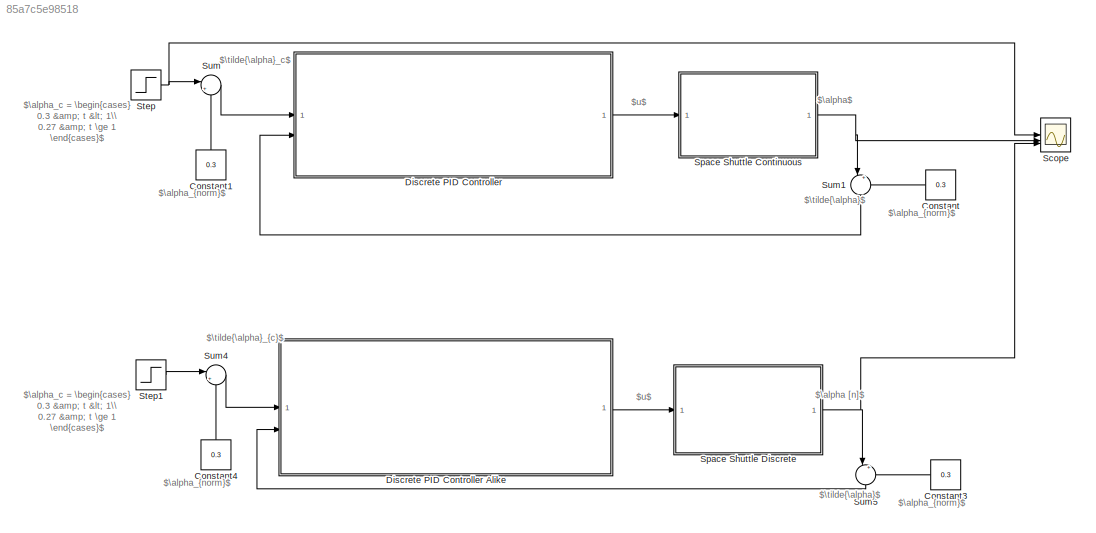
MODEL slx_85a7c5e98518
KIND model
CONFIG AbsTol = auto
CONFIG EnableMultiTasking = off
CONFIG FixedStep = auto
CONFIG MaxStep = auto
CONFIG MinStep = auto
CONFIG RelTol = 1e-3
CONFIG SampleTimeConstraint = Unconstrained
CONFIG SolverName = VariableStepAuto
CONFIG StartTime = 0.0
CONFIG StopTime = 8
WORKSPACE source: mxarray member
WORKSPACE Ki = 2.7
BLOCK [Constant] Constant
  Value = 0.3
BLOCK [Constant] Constant1
  NameLocation = left
  Value = 0.3
BLOCK [Constant] Constant3
  Value = 0.3
BLOCK [Constant] Constant4
  NameLocation = left
  Value = 0.3
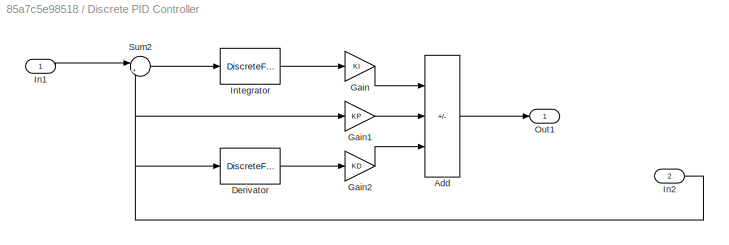
BLOCK [SubSystem] Discrete PID Controller 
BLOCK [Sum] Discrete PID Controller /Add
  IconShape = rectangular
  Inputs = +|-|-
BLOCK [DiscreteFilter] Discrete PID Controller /Derivator
  CloseFcn = dspblkCoreblockFVToolHelper(gcbh,'close');
  CopyFcn = dspblkCoreblockFVToolHelper(gcbh,'copy');
  DeleteFcn = dspblkCoreblockFVToolHelper(gcbh,'close');
  Denominator = [Ts]
  InputPortMap = u0
  LoadFcn = dspblkCoreblockFVToolHelper(gcbh,'load');
  ModelCloseFcn = dspblkCoreblockFVToolHelper(gcbh,'close');
  Numerator = [1 -1]
  PostSaveFcn = dspblkCoreblockFVToolHelper(gcbh,'postsave');
  PreSaveFcn = dspblkCoreblockFVToolHelper(gcbh,'presave');
BLOCK [Gain] Discrete PID Controller /Gain
  Gain = KI
BLOCK [Gain] Discrete PID Controller /Gain1
  Gain = KP
BLOCK [Gain] Discrete PID Controller /Gain2
  Gain = KD
BLOCK [Inport] Discrete PID Controller /In1
BLOCK [Inport] Discrete PID Controller /In2
  Port = 2
BLOCK [DiscreteFilter] Discrete PID Controller /Integrator
  CloseFcn = dspblkCoreblockFVToolHelper(gcbh,'close');
  CopyFcn = dspblkCoreblockFVToolHelper(gcbh,'copy');
  DeleteFcn = dspblkCoreblockFVToolHelper(gcbh,'close');
  Denominator = [1 -1]
  InputPortMap = u0
  LoadFcn = dspblkCoreblockFVToolHelper(gcbh,'load');
  ModelCloseFcn = dspblkCoreblockFVToolHelper(gcbh,'close');
  Numerator = [Ts]
  PostSaveFcn = dspblkCoreblockFVToolHelper(gcbh,'postsave');
  PreSaveFcn = dspblkCoreblockFVToolHelper(gcbh,'presave');
BLOCK [Outport] Discrete PID Controller /Out1
BLOCK [Sum] Discrete PID Controller /Sum2
  Inputs = |+-
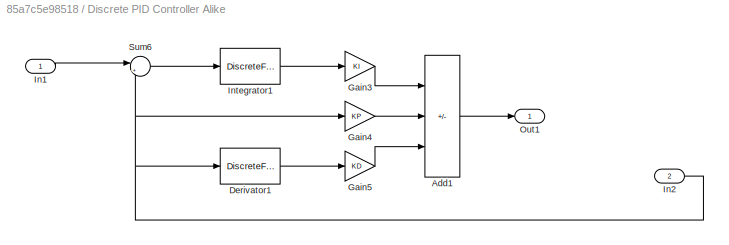
BLOCK [SubSystem] Discrete PID Controller Alike
BLOCK [Sum] Discrete PID Controller Alike/Add1
  IconShape = rectangular
  Inputs = +|-|-
BLOCK [DiscreteFilter] Discrete PID Controller Alike/Derivator1
  CloseFcn = dspblkCoreblockFVToolHelper(gcbh,'close');
  CopyFcn = dspblkCoreblockFVToolHelper(gcbh,'copy');
  DeleteFcn = dspblkCoreblockFVToolHelper(gcbh,'close');
  Denominator = [Ts]
  InputPortMap = u0
  LoadFcn = dspblkCoreblockFVToolHelper(gcbh,'load');
  ModelCloseFcn = dspblkCoreblockFVToolHelper(gcbh,'close');
  Numerator = [1 -1]
  PostSaveFcn = dspblkCoreblockFVToolHelper(gcbh,'postsave');
  PreSaveFcn = dspblkCoreblockFVToolHelper(gcbh,'presave');
BLOCK [Gain] Discrete PID Controller Alike/Gain3
  Gain = KI
BLOCK [Gain] Discrete PID Controller Alike/Gain4
  Gain = KP
BLOCK [Gain] Discrete PID Controller Alike/Gain5
  Gain = KD
BLOCK [Inport] Discrete PID Controller Alike/In1
BLOCK [Inport] Discrete PID Controller Alike/In2
  Port = 2
BLOCK [DiscreteFilter] Discrete PID Controller Alike/Integrator1
  CloseFcn = dspblkCoreblockFVToolHelper(gcbh,'close');
  CopyFcn = dspblkCoreblockFVToolHelper(gcbh,'copy');
  DeleteFcn = dspblkCoreblockFVToolHelper(gcbh,'close');
  Denominator = [1 -1]
  InputPortMap = u0
  LoadFcn = dspblkCoreblockFVToolHelper(gcbh,'load');
  ModelCloseFcn = dspblkCoreblockFVToolHelper(gcbh,'close');
  Numerator = [Ts]
  PostSaveFcn = dspblkCoreblockFVToolHelper(gcbh,'postsave');
  PreSaveFcn = dspblkCoreblockFVToolHelper(gcbh,'presave');
BLOCK [Outport] Discrete PID Controller Alike/Out1
BLOCK [Sum] Discrete PID Controller Alike/Sum6
  Inputs = |+-
BLOCK [Scope] Scope
  Floating = off
  NumInputPorts = 3
  ScopeSpecificationString = Simulink.scopes.TimeScopeBlockCfg('CurrentConfiguration', extmgr.ConfigurationSet(extmgr.Configuration('Core','General UI',true),extmgr.Configuration('Core','Source UI',true),extmgr.Configuration('Sources','WiredSimulink',true),extmgr.Configuration('Visuals','Time Domain',true,'SerializedDisplays',{struct('MinYLimReal','0.26494','MaxYLimReal','0.3039','YLabelReal','\alpha_c (t), \alpha(t), \alpha[...<+1811ch>
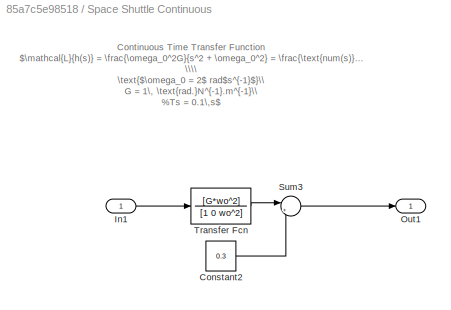
BLOCK [SubSystem] Space Shuttle Continuous
BLOCK [Constant] Space Shuttle Continuous/Constant2
  NameLocation = top
  Value = 0.3
BLOCK [Inport] Space Shuttle Continuous/In1
BLOCK [Outport] Space Shuttle Continuous/Out1
BLOCK [Sum] Space Shuttle Continuous/Sum3
  Inputs = |++
  NameLocation = top
BLOCK [TransferFcn] Space Shuttle Continuous/Transfer Fcn
  Denominator = [1 0 wo^2]
  Numerator = [G*wo^2]
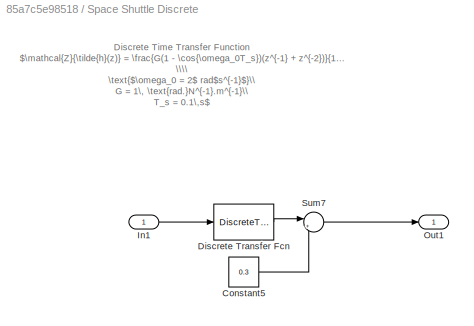
BLOCK [SubSystem] Space Shuttle Discrete
BLOCK [Constant] Space Shuttle Discrete/Constant5
  NameLocation = top
  Value = 0.3
BLOCK [DiscreteTransferFcn] Space Shuttle Discrete/Discrete Transfer Fcn
  CloseFcn = dspblkCoreblockFVToolHelper(gcbh,'close');
  CopyFcn = dspblkCoreblockFVToolHelper(gcbh,'copy');
  DeleteFcn = dspblkCoreblockFVToolHelper(gcbh,'close');
  Denominator = dend
  InputPortMap = u0
  LoadFcn = dspblkCoreblockFVToolHelper(gcbh,'load');
  ModelCloseFcn = dspblkCoreblockFVToolHelper(gcbh,'close');
  Numerator = numd
  PostSaveFcn = dspblkCoreblockFVToolHelper(gcbh,'postsave');
  PreSaveFcn = dspblkCoreblockFVToolHelper(gcbh,'presave');
BLOCK [Inport] Space Shuttle Discrete/In1
BLOCK [Outport] Space Shuttle Discrete/Out1
BLOCK [Sum] Space Shuttle Discrete/Sum7
  Inputs = |++
  NameLocation = top
BLOCK [Step] Step
  After = 0.27
  Before = 0.3
  SampleTime = 0.1
BLOCK [Step] Step1
  After = 0.27
  Before = 0.3
  SampleTime = 0.1
BLOCK [Sum] Sum
  Inputs = |+-
BLOCK [Sum] Sum1
  Inputs = |+-
  NameLocation = right
BLOCK [Sum] Sum4
  Inputs = |+-
BLOCK [Sum] Sum5
  Inputs = |+-
  NameLocation = right
ANNOTATION (root): $\alpha [n]$
ANNOTATION (root): $\alpha$
ANNOTATION (root): $\alpha_c = \begin{cases} 0.3 & t < 1\\ 0.27 & t \ge 1 \end{cases}$
ANNOTATION (root): $\alpha_{norm}$
ANNOTATION (root): $\tilde{\alpha}_c$
ANNOTATION (root): $\tilde{\alpha}_{c}$
ANNOTATION (root): $u$
ANNOTATION (root): $\tilde{\alpha}$
ANNOTATION Space Shuttle Continuous: Continuous Time Transfer Function $\mathcal{L}{h(s)} = \frac{\omega_0^2G}{s^2 + \omega_0^2} = \frac{\text{num(s)}}{\text{den(s)}} \\\\ \text{$\omega_0 = 2$ rad$s^{-1}$}\\ G = 1\, \text{rad.}N^{-1}.m^{-1}\\ %Ts = 0.1\,s$
ANNOTATION Space Shuttle Discrete: Discrete Time Transfer Function $\mathcal{Z}{\tilde{h}(z)} = \frac{G(1 - \cos{\omega_0T_s})(z^{-1} + z^{-2})}{1 - 2\cos{\omega_0 T_s}\,z^{-1} + z^{-2}} = \frac{Y(z)}{U(z)} \\\\ \text{$\omega_0 = 2$ rad$s^{-1}$}\\ G = 1\, \text{rad.}N^{-1}.m^{-1}\\ T_s = 0.1\,s$
LINE Constant1:1 -> Sum:2
LINE Constant3:1 -> Sum5:2
LINE Constant4:1 -> Sum4:2
LINE Constant:1 -> Sum1:2
LINE Discrete PID Controller /Add:1 -> Discrete PID Controller /Out1:1
LINE Discrete PID Controller /Derivator:1 -> Discrete PID Controller /Gain2:1
LINE Discrete PID Controller /Gain1:1 -> Discrete PID Controller /Add:2
LINE Discrete PID Controller /Gain2:1 -> Discrete PID Controller /Add:3
LINE Discrete PID Controller /Gain:1 -> Discrete PID Controller /Add:1
LINE Discrete PID Controller /In1:1 -> Discrete PID Controller /Sum2:1
NET Discrete PID Controller /In2:1 -> Discrete PID Controller /Derivator:1, Discrete PID Controller /Gain1:1, Discrete PID Controller /Sum2:2
LINE Discrete PID Controller /Integrator:1 -> Discrete PID Controller /Gain:1
LINE Discrete PID Controller /Sum2:1 -> Discrete PID Controller /Integrator:1
LINE Discrete PID Controller :1 -> Space Shuttle Continuous:1
LINE Discrete PID Controller Alike/Add1:1 -> Discrete PID Controller Alike/Out1:1
LINE Discrete PID Controller Alike/Derivator1:1 -> Discrete PID Controller Alike/Gain5:1
LINE Discrete PID Controller Alike/Gain3:1 -> Discrete PID Controller Alike/Add1:1
LINE Discrete PID Controller Alike/Gain4:1 -> Discrete PID Controller Alike/Add1:2
LINE Discrete PID Controller Alike/Gain5:1 -> Discrete PID Controller Alike/Add1:3
LINE Discrete PID Controller Alike/In1:1 -> Discrete PID Controller Alike/Sum6:1
NET Discrete PID Controller Alike/In2:1 -> Discrete PID Controller Alike/Derivator1:1, Discrete PID Controller Alike/Gain4:1, Discrete PID Controller Alike/Sum6:2
LINE Discrete PID Controller Alike/Integrator1:1 -> Discrete PID Controller Alike/Gain3:1
LINE Discrete PID Controller Alike/Sum6:1 -> Discrete PID Controller Alike/Integrator1:1
LINE Discrete PID Controller Alike:1 -> Space Shuttle Discrete:1
LINE Space Shuttle Continuous/Constant2:1 -> Space Shuttle Continuous/Sum3:2
LINE Space Shuttle Continuous/In1:1 -> Space Shuttle Continuous/Transfer Fcn:1
LINE Space Shuttle Continuous/Sum3:1 -> Space Shuttle Continuous/Out1:1
LINE Space Shuttle Continuous/Transfer Fcn:1 -> Space Shuttle Continuous/Sum3:1
NET Space Shuttle Continuous:1 -> Scope:2, Sum1:1
LINE Space Shuttle Discrete/Constant5:1 -> Space Shuttle Discrete/Sum7:2
LINE Space Shuttle Discrete/Discrete Transfer Fcn:1 -> Space Shuttle Discrete/Sum7:1
LINE Space Shuttle Discrete/In1:1 -> Space Shuttle Discrete/Discrete Transfer Fcn:1
LINE Space Shuttle Discrete/Sum7:1 -> Space Shuttle Discrete/Out1:1
NET Space Shuttle Discrete:1 -> Scope:3, Sum5:1
LINE Step1:1 -> Sum4:1
NET Step:1 -> Scope:1, Sum:1
LINE Sum1:1 -> Discrete PID Controller :2
LINE Sum4:1 -> Discrete PID Controller Alike:1
LINE Sum5:1 -> Discrete PID Controller Alike:2
LINE Sum:1 -> Discrete PID Controller :1
note: NET lines group one-source signal fan-out (src -> all destinations, sorted); 1:1 wires keep LINE
